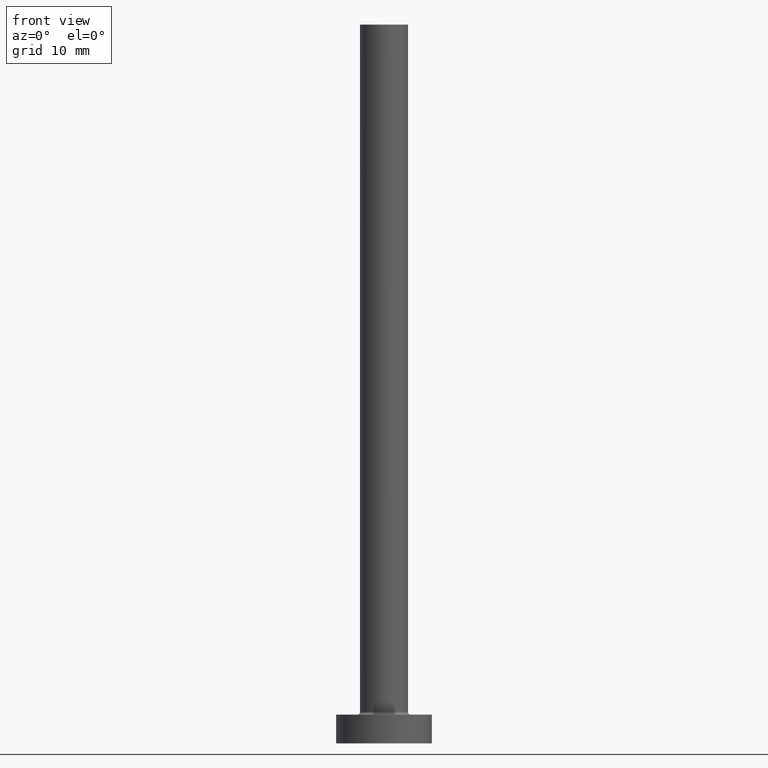
[diagram: clean part render]
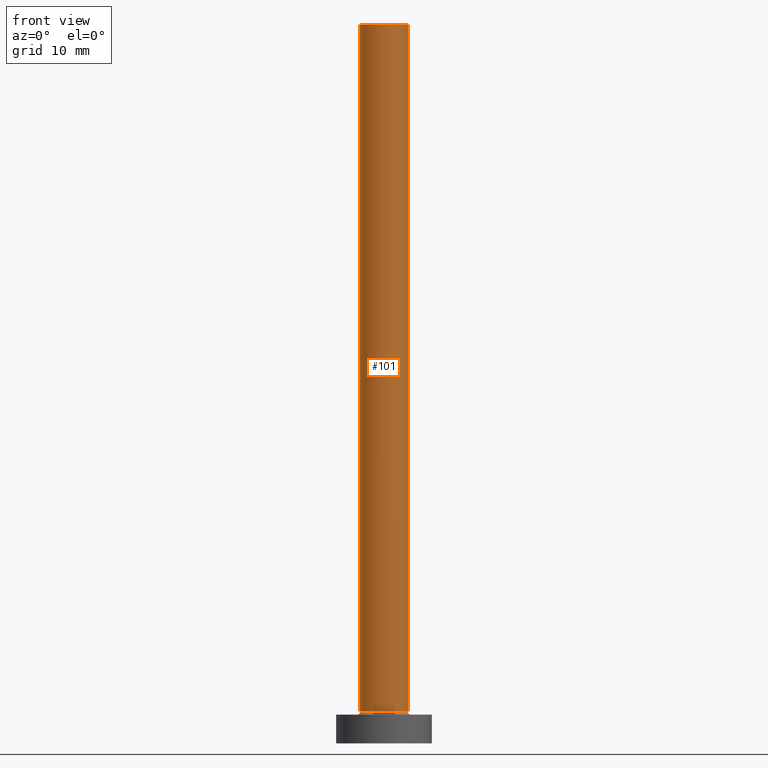
[diagram: same view with one face highlighted and labeled with its STEP entity id]
A machine part, front view. The second image highlights one B-rep face of the part: STEP entity #101.
In plain terms, the highlighted cylindrical surface (edge-blend (fillet) strip) has radius 2.5 mm, axis along (-0, -0, -1).
Its self-contained STEP definition (entity closure, byte-faithful):
#16 = EDGE_CURVE ( 'NONE', #419, #316, #165, .T. ) ;
#40 = CARTESIAN_POINT ( 'NONE',  ( -2.500000000000000000, 0.000000000000000000, 75.00000000000001421 ) ) ;
#54 = EDGE_CURVE ( 'NONE', #316, #216, #146, .T. ) ;
#61 = ORIENTED_EDGE ( 'NONE', *, *, #16, .F. ) ;
#74 = ORIENTED_EDGE ( 'NONE', *, *, #152, .T. ) ;
#76 = DIRECTION ( 'NONE',  ( -1.000000000000000000, 0.000000000000000000, 0.000000000000000000 ) ) ;
#81 = CARTESIAN_POINT ( 'NONE',  ( 2.500000000000000000, 3.061616997868383141E-16, 3.299999999999997158 ) ) ;
#87 = VECTOR ( 'NONE', #388, 1000.000000000000000 ) ;
#89 = CARTESIAN_POINT ( 'NONE',  ( -2.500000000000000000, 0.000000000000000000, 3.299999999999997158 ) ) ;
#90 = CARTESIAN_POINT ( 'NONE',  ( 0.000000000000000000, 0.000000000000000000, 3.299999999999997158 ) ) ;
#101 = ADVANCED_FACE ( 'NONE', ( #253 ), #222, .T. ) ;
#105 = ORIENTED_EDGE ( 'NONE', *, *, #326, .T. ) ;
#108 = CARTESIAN_POINT ( 'NONE',  ( 0.000000000000000000, 0.000000000000000000, 75.00000000000001421 ) ) ;
#139 = ORIENTED_EDGE ( 'NONE', *, *, #54, .F. ) ;
#146 = LINE ( 'NONE', #285, #87 ) ;
#152 = EDGE_CURVE ( 'NONE', #419, #422, #251, .T. ) ;
#165 = CIRCLE ( 'NONE', #278, 2.500000000000000000 ) ;
#186 = DIRECTION ( 'NONE',  ( 1.000000000000000000, 0.000000000000000000, 0.000000000000000000 ) ) ;
#210 = AXIS2_PLACEMENT_3D ( 'NONE', #328, #354, #76 ) ;
#216 = VERTEX_POINT ( 'NONE', #81 ) ;
#222 = CYLINDRICAL_SURFACE ( 'NONE', #210, 2.500000000000000000 ) ;
#228 = AXIS2_PLACEMENT_3D ( 'NONE', #90, #414, #374 ) ;
#248 = DIRECTION ( 'NONE',  ( 0.000000000000000000, 0.000000000000000000, 1.000000000000000000 ) ) ;
#251 = LINE ( 'NONE', #40, #318 ) ;
#253 = FACE_OUTER_BOUND ( 'NONE', #383, .T. ) ;
#265 = CARTESIAN_POINT ( 'NONE',  ( -2.500000000000000000, 0.000000000000000000, 75.00000000000001421 ) ) ;
#278 = AXIS2_PLACEMENT_3D ( 'NONE', #108, #248, #186 ) ;
#285 = CARTESIAN_POINT ( 'NONE',  ( 2.500000000000000000, 3.061616997868383141E-16, 75.00000000000001421 ) ) ;
#301 = CARTESIAN_POINT ( 'NONE',  ( 2.500000000000000000, 3.061616997868383141E-16, 75.00000000000001421 ) ) ;
#316 = VERTEX_POINT ( 'NONE', #301 ) ;
#318 = VECTOR ( 'NONE', #433, 1000.000000000000000 ) ;
#326 = EDGE_CURVE ( 'NONE', #422, #216, #425, .T. ) ;
#328 = CARTESIAN_POINT ( 'NONE',  ( 0.000000000000000000, 0.000000000000000000, 75.00000000000001421 ) ) ;
#354 = DIRECTION ( 'NONE',  ( -0.000000000000000000, -0.000000000000000000, -1.000000000000000000 ) ) ;
#374 = DIRECTION ( 'NONE',  ( 1.000000000000000000, 0.000000000000000000, 0.000000000000000000 ) ) ;
#383 = EDGE_LOOP ( 'NONE', ( #139, #61, #74, #105 ) ) ;
#388 = DIRECTION ( 'NONE',  ( -0.000000000000000000, -0.000000000000000000, -1.000000000000000000 ) ) ;
#414 = DIRECTION ( 'NONE',  ( 0.000000000000000000, 0.000000000000000000, 1.000000000000000000 ) ) ;
#419 = VERTEX_POINT ( 'NONE', #265 ) ;
#422 = VERTEX_POINT ( 'NONE', #89 ) ;
#425 = CIRCLE ( 'NONE', #228, 2.500000000000000000 ) ;
#433 = DIRECTION ( 'NONE',  ( -0.000000000000000000, -0.000000000000000000, -1.000000000000000000 ) ) ;